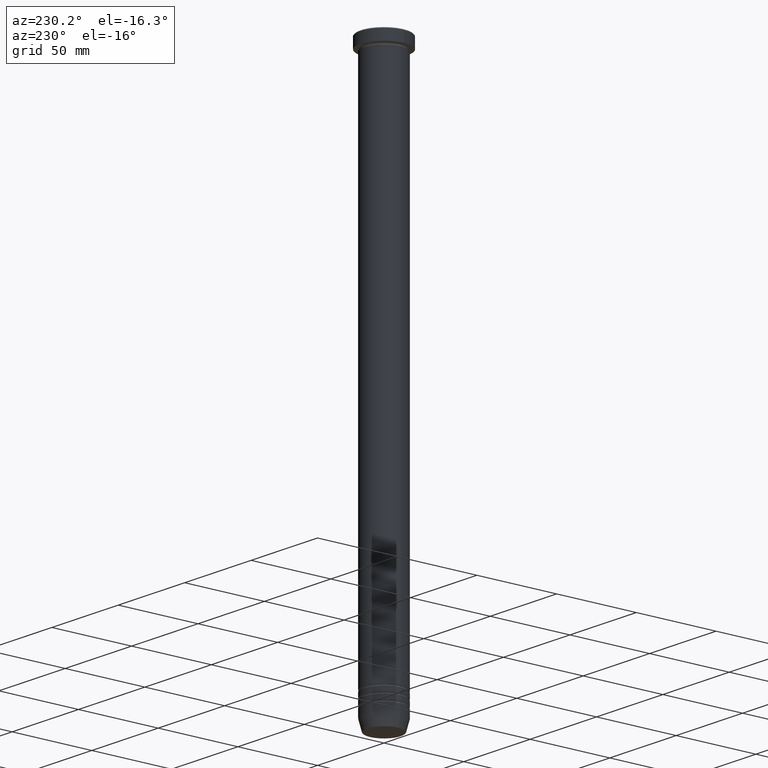
[diagram: clean part render]
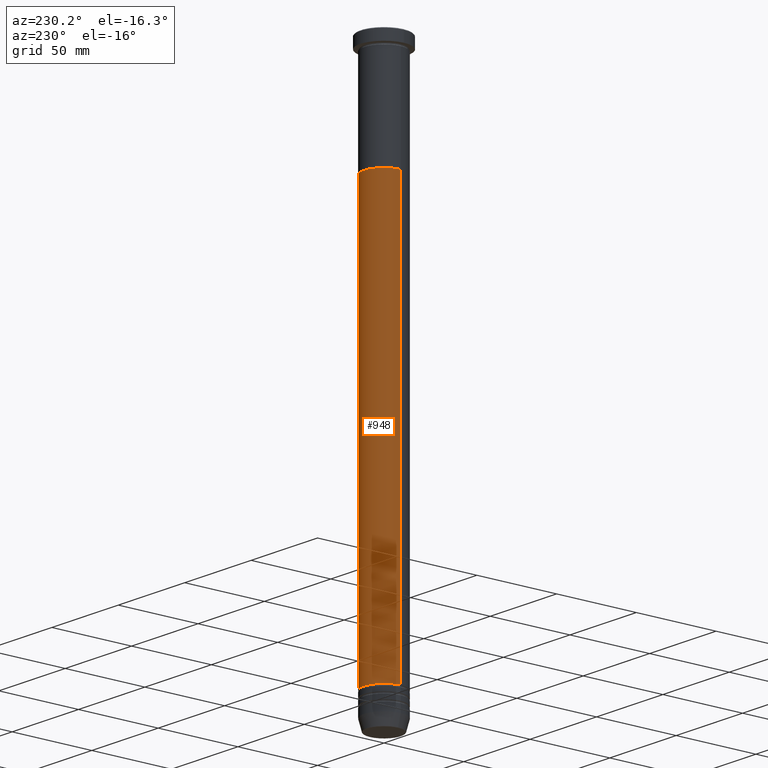
[diagram: same view with one face highlighted and labeled with its STEP entity id]
A machine part, auxiliary view. The second image highlights one B-rep face of the part: STEP entity #948.
In plain terms, the highlighted cylindrical surface (edge-blend (fillet) strip) has radius 12.5 mm, axis along (-0, -0, 1).
Its self-contained STEP definition (entity closure, byte-faithful):
#32 = VERTEX_POINT ( 'NONE', #429 ) ;
#37 = ORIENTED_EDGE ( 'NONE', *, *, #174, .F. ) ;
#54 = CARTESIAN_POINT ( 'NONE',  ( -12.49999999999999645, 1.530808498934191127E-15, 0.000000000000000000 ) ) ;
#124 = CARTESIAN_POINT ( 'NONE',  ( -12.50000000000000000, 1.530808498934191521E-15, -70.00000000000000000 ) ) ;
#136 = LINE ( 'NONE', #54, #166 ) ;
#166 = VECTOR ( 'NONE', #853, 1000.000000000000000 ) ;
#174 = EDGE_CURVE ( 'NONE', #989, #994, #302, .T. ) ;
#182 = DIRECTION ( 'NONE',  ( 1.000000000000000000, 0.000000000000000000, 0.000000000000000000 ) ) ;
#200 = FACE_OUTER_BOUND ( 'NONE', #805, .T. ) ;
#289 = AXIS2_PLACEMENT_3D ( 'NONE', #742, #988, #427 ) ;
#302 = CIRCLE ( 'NONE', #808, 12.50000000000000000 ) ;
#328 = VECTOR ( 'NONE', #797, 1000.000000000000000 ) ;
#348 = CARTESIAN_POINT ( 'NONE',  ( 12.49999999999999289, 0.000000000000000000, -329.0000000000000568 ) ) ;
#427 = DIRECTION ( 'NONE',  ( 1.000000000000000000, 0.000000000000000000, 0.000000000000000000 ) ) ;
#429 = CARTESIAN_POINT ( 'NONE',  ( -12.49999999999999289, 1.530808498934190930E-15, -329.0000000000000568 ) ) ;
#444 = EDGE_CURVE ( 'NONE', #987, #32, #718, .T. ) ;
#472 = DIRECTION ( 'NONE',  ( -0.000000000000000000, -0.000000000000000000, 1.000000000000000000 ) ) ;
#478 = LINE ( 'NONE', #894, #328 ) ;
#486 = ORIENTED_EDGE ( 'NONE', *, *, #809, .F. ) ;
#575 = ORIENTED_EDGE ( 'NONE', *, *, #610, .T. ) ;
#610 = EDGE_CURVE ( 'NONE', #32, #994, #136, .T. ) ;
#615 = ORIENTED_EDGE ( 'NONE', *, *, #444, .T. ) ;
#650 = DIRECTION ( 'NONE',  ( -0.000000000000000000, -0.000000000000000000, 1.000000000000000000 ) ) ;
#718 = CIRCLE ( 'NONE', #289, 12.49999999999999289 ) ;
#731 = CARTESIAN_POINT ( 'NONE',  ( 0.000000000000000000, 0.000000000000000000, 0.000000000000000000 ) ) ;
#742 = CARTESIAN_POINT ( 'NONE',  ( 0.000000000000000000, 0.000000000000000000, -329.0000000000000568 ) ) ;
#760 = CARTESIAN_POINT ( 'NONE',  ( 0.000000000000000000, 0.000000000000000000, -70.00000000000000000 ) ) ;
#794 = DIRECTION ( 'NONE',  ( 1.000000000000000000, 0.000000000000000000, 0.000000000000000000 ) ) ;
#797 = DIRECTION ( 'NONE',  ( -0.000000000000000000, -0.000000000000000000, 1.000000000000000000 ) ) ;
#805 = EDGE_LOOP ( 'NONE', ( #615, #575, #37, #486 ) ) ;
#808 = AXIS2_PLACEMENT_3D ( 'NONE', #760, #472, #794 ) ;
#809 = EDGE_CURVE ( 'NONE', #987, #989, #478, .T. ) ;
#853 = DIRECTION ( 'NONE',  ( -0.000000000000000000, -0.000000000000000000, 1.000000000000000000 ) ) ;
#894 = CARTESIAN_POINT ( 'NONE',  ( 12.49999999999999645, 0.000000000000000000, 0.000000000000000000 ) ) ;
#903 = CYLINDRICAL_SURFACE ( 'NONE', #986, 12.49999999999999645 ) ;
#948 = ADVANCED_FACE ( 'NONE', ( #200 ), #903, .T. ) ;
#986 = AXIS2_PLACEMENT_3D ( 'NONE', #731, #650, #182 ) ;
#987 = VERTEX_POINT ( 'NONE', #348 ) ;
#988 = DIRECTION ( 'NONE',  ( -0.000000000000000000, -0.000000000000000000, 1.000000000000000000 ) ) ;
#989 = VERTEX_POINT ( 'NONE', #991 ) ;
#991 = CARTESIAN_POINT ( 'NONE',  ( 12.50000000000000000, 0.000000000000000000, -70.00000000000000000 ) ) ;
#994 = VERTEX_POINT ( 'NONE', #124 ) ;